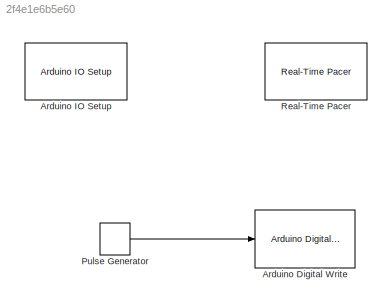
MODEL slx_2f4e1e6b5e60
KIND model
BLOCK [Reference] Arduino Digital Write  REF=arduino_io_lib/Arduino Digital Write
  Ports = [1]
  SourceBlock = arduino_io_lib/Arduino Digital Write
  SourceType = Arduino IO digital Write
  T = .1
  arduinoPin = 13
  arduinoVar = Temporary arduino variable: Arduino1
BLOCK [Reference] Arduino IO Setup  REF=arduino_io_lib/Arduino IO Setup
  Ports = []
  Priority = 3
  SourceBlock = arduino_io_lib/Arduino IO Setup
  SourceType = Arduino IO Setup
  arduinoVar = Temporary arduino variable: Arduino1
  comPort = COM10
  workspaceVarName = a
BLOCK [DiscretePulseGenerator] Pulse Generator
  Period = 1
  Ports = [0, 1]
  PulseType = Time based
  PulseWidth = 50
BLOCK [Reference] Real-Time Pacer  REF=arduino_io_lib/Real-Time Pacer
  Ports = []
  SourceBlock = arduino_io_lib/Real-Time Pacer
  SourceType = RealTime_Pacer
  simTimePerRealTime = 1
LINE Pulse Generator:1 -> Arduino Digital Write:1
